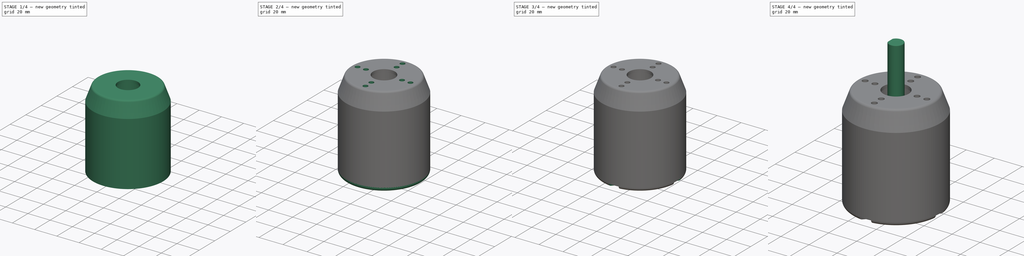
[diagram: build sequence overview — one tinted view per stage of 4, left to right]
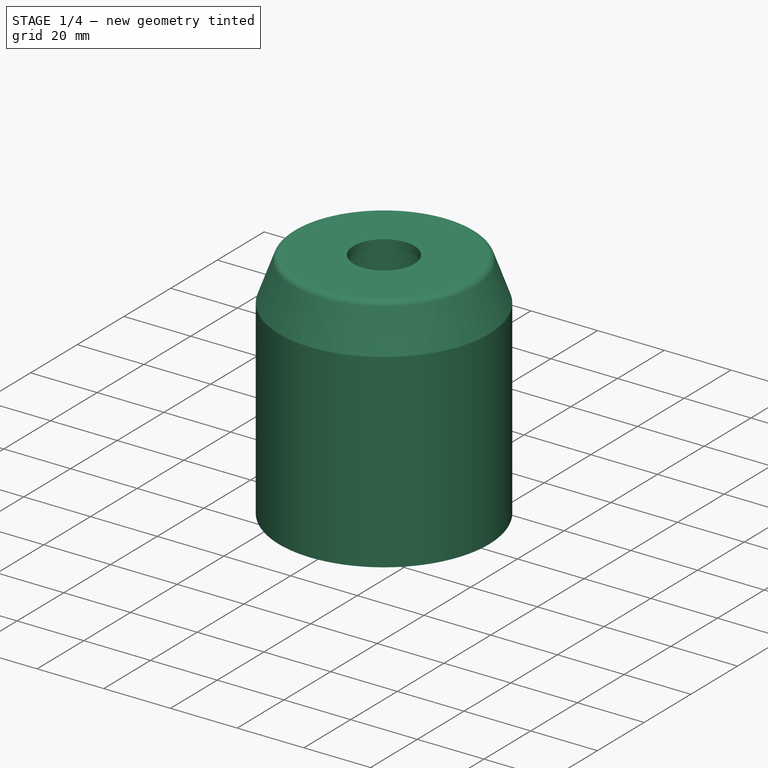
[diagram: stage 1 of 4 — iso view after this stage's code; geometry added in this stage tinted green]
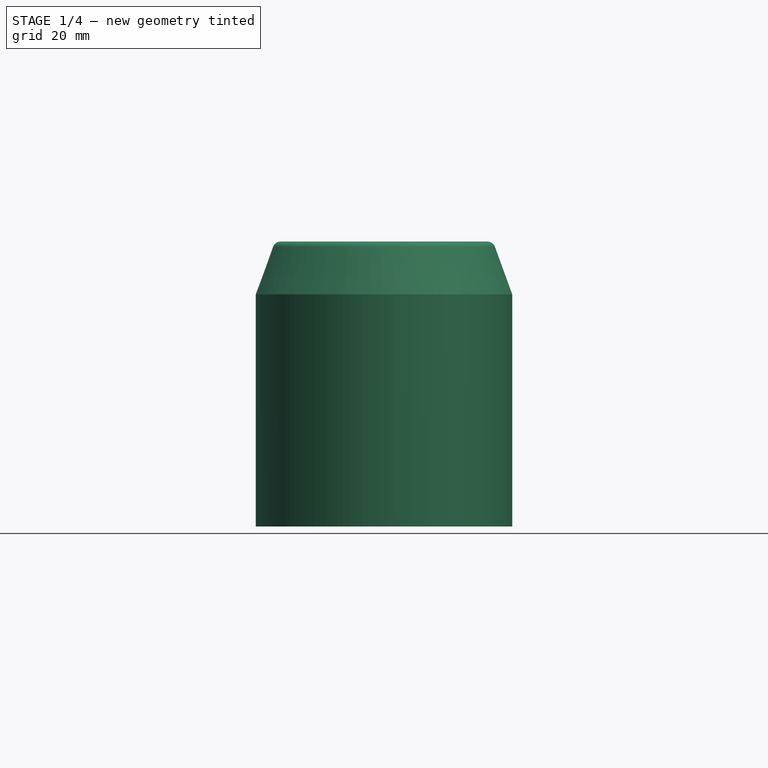
[diagram: stage 1 of 4 — front view after this stage's code; geometry added in this stage tinted green]
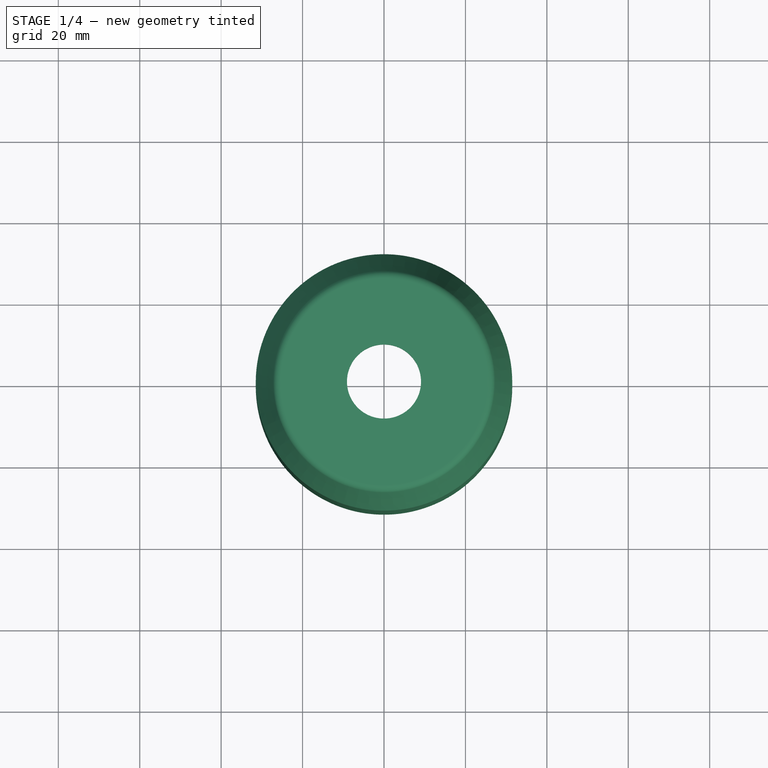
[diagram: stage 1 of 4 — top view after this stage's code; geometry added in this stage tinted green]
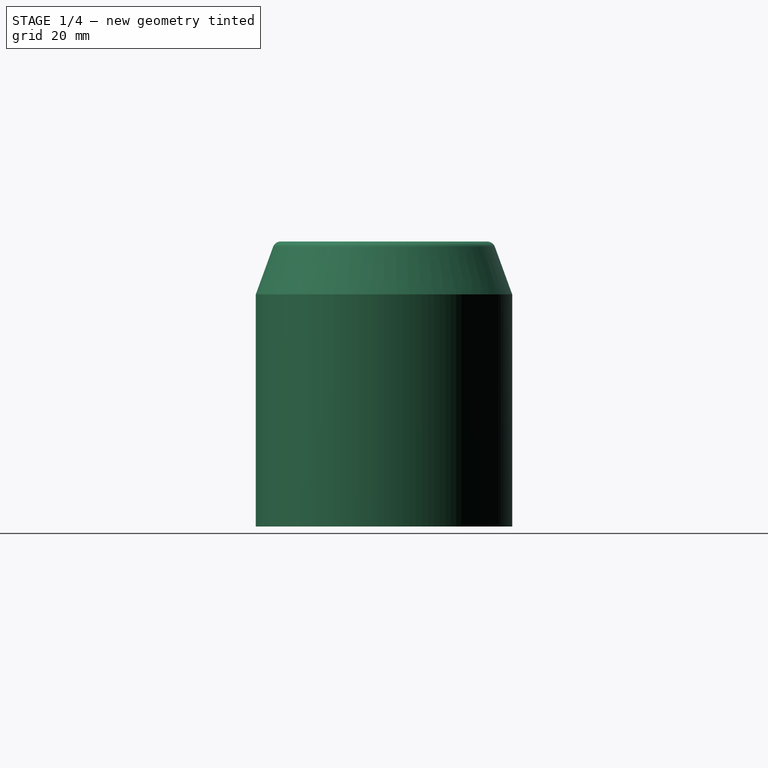
[diagram: stage 1 of 4 — right view after this stage's code; geometry added in this stage tinted green]
FCSTD DOCUMENT  (FreeCAD 0.22R37898 (Git))
Label: 9384 DC motor
License: All rights reserved
LicenseURL: http://en.wikipedia.org/wiki/All_rights_reserved
objects: Sketcher::SketchObject×8, PartDesign::Pocket×4, PartDesign::Revolution×3, PartDesign::Body×2, App::FeaturePython×1, PartDesign::Pad×1, PartDesign::PolarPattern×1
note: 27 computed .brp shape members not serialized (recipe doc carries the construction recipe); baked Part::Feature solids carry a one-line shape summary decoded from their .brp

FEATURE [Sketcher::SketchObject] Sketch005  label="Top sketch"
  AttachmentSupport = -> [XZ_Plane]
  FullyConstrained = true
  MapMode = 5
  Placement = pos=(0,0,0) rot=(1,0,0;1.5708rad)
  expr: Constraints[17] = dd.BearingDiameter / 2 + 0.1 mm
  expr: Constraints[8] = dd.Diameter / 2
  sketch-geometry (8):
    g0: LineSegment StartX=9.1 StartY=0 StartZ=0 EndX=25.368 EndY=0 EndZ=0
    g1: ArcOfCircle CenterX=25.368 CenterY=-2 CenterZ=0 NormalX=0 NormalY=0 NormalZ=1 AngleXU=0 Radius=2 StartAngle=0.349066 EndAngle=1.5708
    g2: LineSegment StartX=27.2474 StartY=-1.31596 StartZ=0 EndX=31.5 EndY=-13 EndZ=0
    g3: LineSegment StartX=31.5 StartY=-13 StartZ=0 EndX=31.5 EndY=-15 EndZ=0
    g4: LineSegment StartX=31.5 StartY=-15 StartZ=0 EndX=11.1 EndY=-15 EndZ=0
    g5: LineSegment StartX=9.1 StartY=0 StartZ=0 EndX=9.1 EndY=-2.5 EndZ=0
    g6: LineSegment StartX=9.1 StartY=-2.5 StartZ=0 EndX=11.1 EndY=-2.5 EndZ=0
    g7: LineSegment StartX=11.1 StartY=-2.5 StartZ=0 EndX=11.1 EndY=-15 EndZ=0
  constraints (23):
    c: Horizontal(g0)
    c: Tangent(g0,g1) = 1.5708
    c: Coincident(g2,g3)
    c: Coincident(g3,g4)
    c: Horizontal(g4)
    c: Radius(g1) = 2
    c: Tangent(g1,g2) = 1.5708
    c: Vertical(g3)
    c: DistanceX(g-1,g3) = 31.5
    c: Angle(g2,g3) = 2.79253
    c: Coincident(g5,g0)
    c: Vertical(g5)
    c: Coincident(g6,g5)
    c: Horizontal(g6)
    c: Coincident(g7,g6)
    c: Coincident(g7,g4)
    c: Vertical(g7)
    c: DistanceX(g-1,g6) = 11.1
    c: DistanceX(g6,g6) = 2
    c: DistanceY(g3,g3) = 2
    c: DistanceY(g4,g0) = 15  'height'
    c: DistanceY(g5,g5) = 2.5
    c: PointOnObject(g0,g-1)
FEATURE [App::FeaturePython] dd  # WARN: FeaturePython — macro-defined, semantics opaque (R4)
  AxisDiameter = 10
  AxisStickout = 31
  BackplateDiameter = 28
  BearingDiameter = 22
  DShaftLength = 28
  DShaftThickness = 9
  Diameter = 63
  DynamicData = Created with DynamicData (v2.62) workbench. | This is a simple container object built | for holding custom properties.
  Length = 80
  MountingHole1Diameter = 4
  MountingHole1Placement = 30
  MountingHole2Diameter = 4
  MountingHole2Placement = 44
FEATURE [Sketcher::SketchObject] Sketch
  AttachmentOffset = pos=(0,0,-15) rot=(0,0,1;0rad)
  AttachmentSupport = -> [XY_Plane]
  FullyConstrained = true
  MapMode = 5
  Placement = pos=(0,0,-15) rot=(0,0,1;0rad)
  expr: .AttachmentOffset.Base.z = -<<Top sketch>>.Constraints.height
  expr: Constraints[1] = dd.Diameter
  expr: Constraints[3] = dd.Diameter - 3 mm
  sketch-geometry (2):
    g0: Circle CenterX=0 CenterY=0 CenterZ=0 NormalX=0 NormalY=0 NormalZ=1 AngleXU=0 Radius=31.5
    g1: Circle CenterX=0 CenterY=0 CenterZ=0 NormalX=0 NormalY=0 NormalZ=1 AngleXU=0 Radius=30
  constraints (4):
    c: Coincident(g0,g-1)
    c: Diameter(g0) = 63
    c: Coincident(g1,g0)
    c: Diameter(g1) = 60
FEATURE [PartDesign::Revolution] Revolution  label="Top"
  Angle = 360
  Angle2 = 60
  Axis = (0,2e-16,1)
  Base = (0,0,0)
  Placement = pos=(0,0,0) rot=(1,0,0;1.5708rad)
  Profile = -> Sketch005
  ReferenceAxis = -> Sketch005 [V_Axis]
  Reversed = true
  Suppressed = false
  Type = 0
FEATURE [PartDesign::Pad] Pad  label="Middle"
  BaseFeature = -> Revolution
  Direction = (0,0,1)
  Length = 55
  Length2 = 10
  Placement = pos=(0,0,0) rot=(1,0,0;1.5708rad)
  Profile = -> Sketch
  ReferenceAxis = -> Sketch [N_Axis]
  Reversed = true
  Suppressed = false
  Type = 0
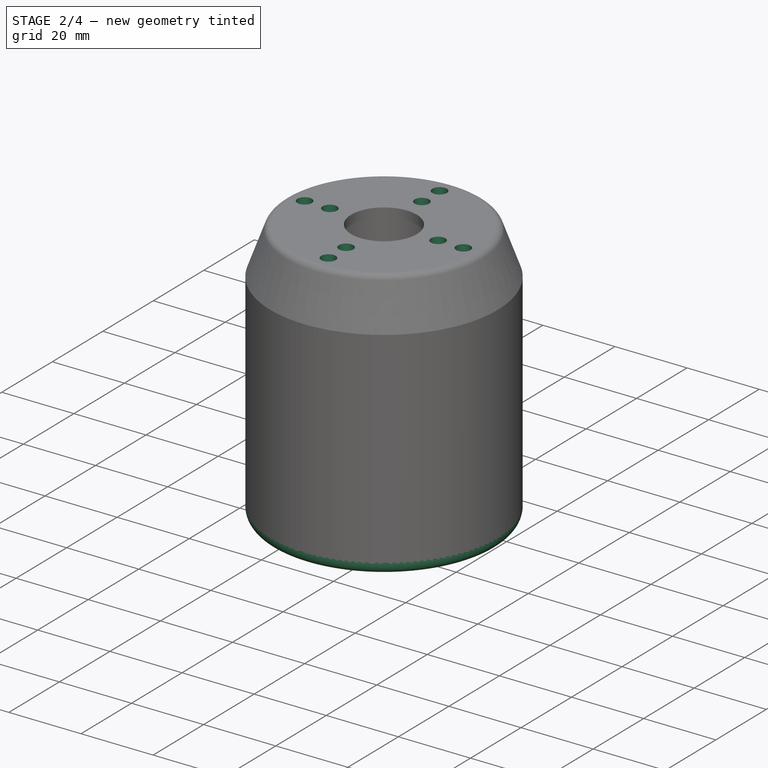
[diagram: stage 2 of 4 — iso view after this stage's code; geometry added in this stage tinted green]
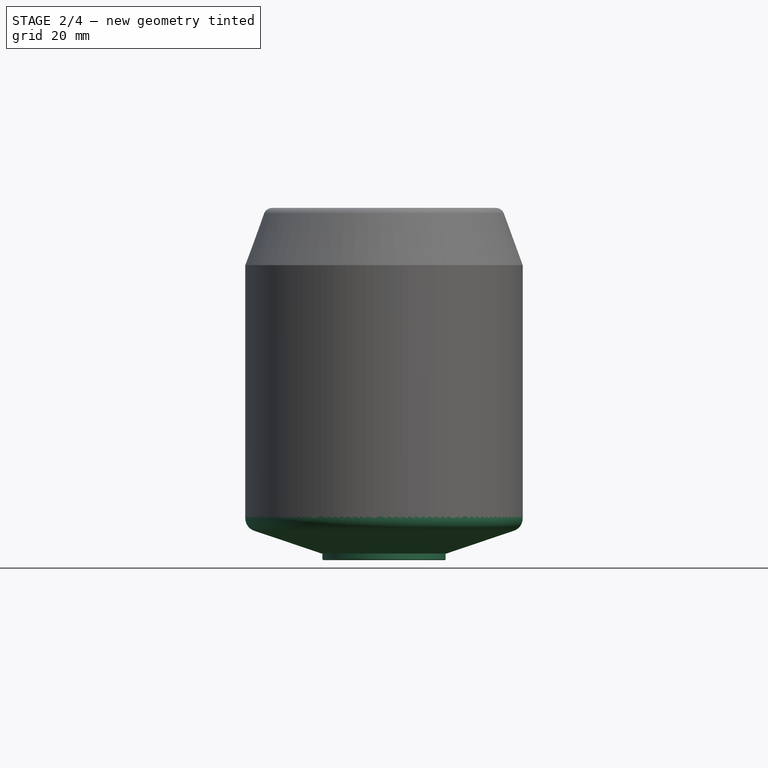
[diagram: stage 2 of 4 — front view after this stage's code; geometry added in this stage tinted green]
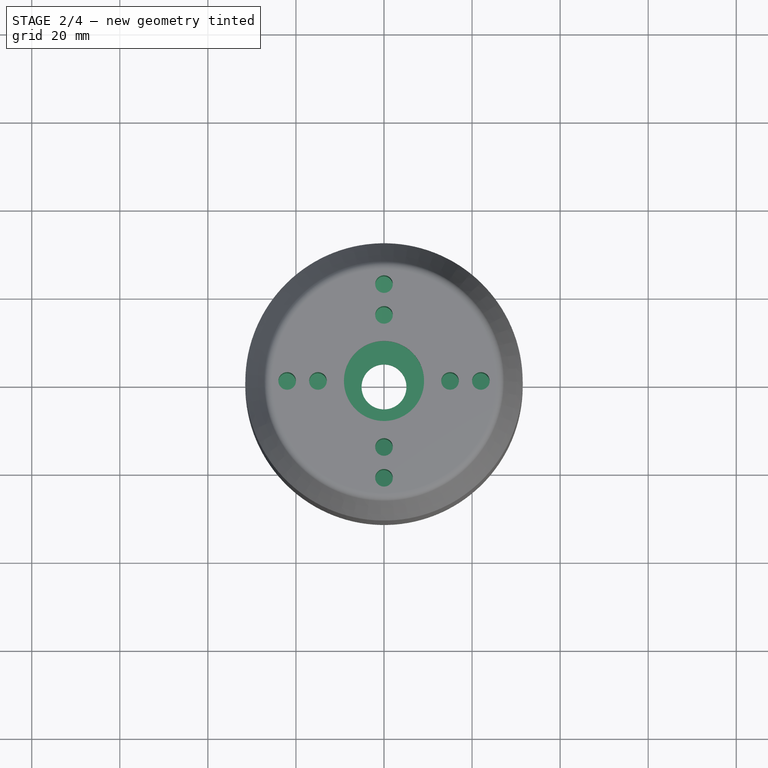
[diagram: stage 2 of 4 — top view after this stage's code; geometry added in this stage tinted green]
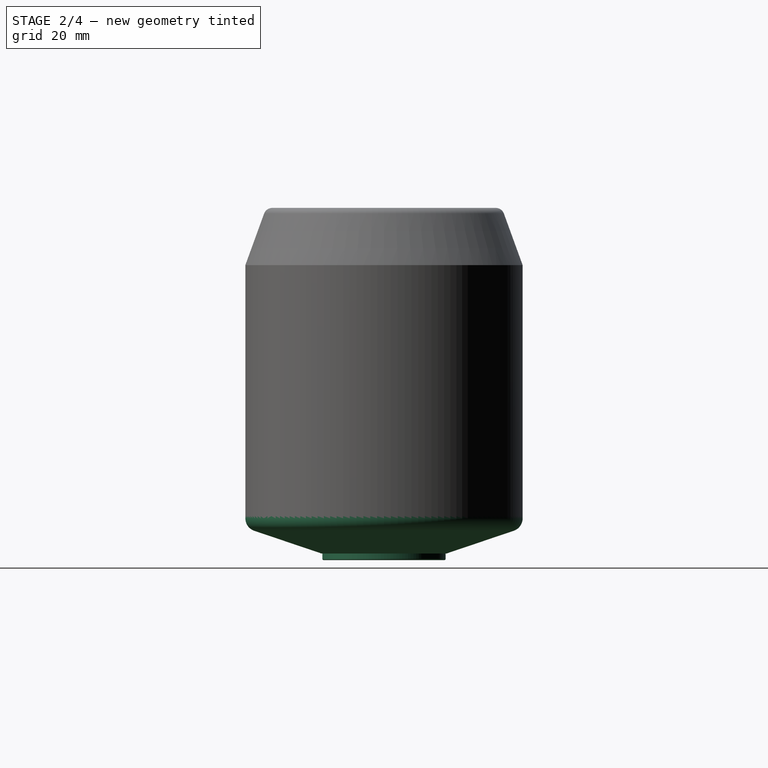
[diagram: stage 2 of 4 — right view after this stage's code; geometry added in this stage tinted green]
FEATURE [Sketcher::SketchObject] Sketch006  label="Back scketch"
  AttachmentSupport = -> [XZ_Plane]
  FullyConstrained = true
  MapMode = 5
  Placement = pos=(0,0,0) rot=(1,0,0;1.5708rad)
  expr: .Constraints.top = <<Top sketch>>.Constraints.height + <<Middle>>.Length
  expr: Constraints[10] = dd.Diameter / 2
  expr: Constraints[17] = dd.Length
  expr: Constraints[8] = dd.AxisDiameter / 2 + 0.1 mm
  expr: Constraints[9] = dd.BackplateDiameter / 2
  sketch-geometry (14):
    g0: LineSegment StartX=5.1 StartY=-80 StartZ=0 EndX=13.7 EndY=-80 EndZ=0
    g1: LineSegment StartX=14 StartY=-79.7 StartZ=0 EndX=14 EndY=-78.5 EndZ=0
    g2: LineSegment StartX=14 StartY=-78.5 StartZ=0 EndX=14.2 EndY=-78.5 EndZ=0
    g3: LineSegment StartX=14.2 StartY=-78.5 StartZ=0 EndX=29.4606 EndY=-73.3421 EndZ=0
    g4: ArcOfCircle CenterX=28.5 CenterY=-70.5 CenterZ=0 NormalX=0 NormalY=0 NormalZ=1 AngleXU=0 Radius=3 StartAngle=5.03833 EndAngle=6.28319
    g5: LineSegment StartX=31.5 StartY=-70.5 StartZ=0 EndX=31.5 EndY=-70 EndZ=0
    g6: LineSegment StartX=5.1 StartY=-78 StartZ=0 EndX=5.1 EndY=-80 EndZ=0
    g7: ArcOfCircle CenterX=13.7 CenterY=-79.7 CenterZ=0 NormalX=0 NormalY=0 NormalZ=1 AngleXU=0 Radius=0.3 StartAngle=4.71239 EndAngle=6.28319
    g8: GeomPoint X=14 Y=-80 Z=0
    g9: LineSegment StartX=5.1 StartY=-78 StartZ=0 EndX=10.9947 EndY=-78 EndZ=0
    g10: LineSegment StartX=10.9947 StartY=-78 StartZ=0 EndX=28.9803 EndY=-71.921 EndZ=0
    g11: LineSegment StartX=31.5 StartY=-70 StartZ=0 EndX=30 EndY=-70 EndZ=0
    g12: LineSegment StartX=30 StartY=-70 StartZ=0 EndX=30 EndY=-70.5 EndZ=0
    g13: ArcOfCircle CenterX=28.5 CenterY=-70.5 CenterZ=0 NormalX=0 NormalY=0 NormalZ=1 AngleXU=0 Radius=1.5 StartAngle=5.03833 EndAngle=6.28319
  constraints (37):
    c: Horizontal(g0)
    c: Vertical(g1)
    c: Coincident(g1,g2)
    c: Coincident(g2,g3)
    c: Tangent(g3,g4) = -1.5708
    c: Vertical(g5)
    c: Coincident(g6,g0)
    c: Vertical(g6)
    c: DistanceX(g-1,g6) = 5.1
    c: DistanceX(g-1,g8) = 14
    c: DistanceX(g-1,g5) = 31.5
    c: Tangent(g4,g5) = -1.5708
    c: Horizontal(g2)
    c: Radius(g4) = 3
    c: DistanceY(g5,g5) = 0.5
    c: DistanceY(g8,g1) = 1.5
    c: DistanceX(g2,g2) = 0.2
    c: DistanceY(g0,g-1) = 80
    c: PointOnObject(g8,g0)
    c: PointOnObject(g8,g1)
    c: Tangent(g0,g7) = -1.5708
    c: Tangent(g1,g7) = -1.5708
    c: Radius(g7) = 0.3
    c: DistanceY(g5,g-1) = 70  'top'
    c: Coincident(g9,g6)
    c: Horizontal(g9)
    c: Coincident(g10,g9)
    c: Coincident(g11,g5)
    c: Coincident(g12,g11)
    c: Vertical(g12)
    c: Coincident(g13,g4)
    c: Horizontal(g11)
    c: DistanceX(g11,g11) = 1.5
    c: Tangent(g13,g12) = 1.5708
    c: Tangent(g13,g10) = -1.5708
    c: Parallel(g10,g3)
    c: DistanceY(g6,g6) = 2
FEATURE [PartDesign::Revolution] Revolution002  label="Back"
  Angle = 360
  Angle2 = 60
  Axis = (0,2e-16,1)
  Base = (0,0,0)
  BaseFeature = -> Pad
  Placement = pos=(0,0,0) rot=(1,0,0;1.5708rad)
  Profile = -> Sketch006
  ReferenceAxis = -> Sketch006 [V_Axis]
  Reversed = true
  Suppressed = false
  Type = 0
FEATURE [PartDesign::Body] Body001  label="Axis"
  AllowCompound = false
  Group = -> [Sketch007,Revolution003,Sketch008,Pocket]
  Origin = -> Origin001
  Tip = -> Pocket
FEATURE [Sketcher::SketchObject] Sketch009  label="Top mounting holes sketch"
  AttachmentSupport = -> [XY_Plane]
  FullyConstrained = true
  MapMode = 5
  expr: Constraints[15] = dd.MountingHole2Diameter
  expr: Constraints[19] = dd.MountingHole1Diameter
  expr: Constraints[2] = dd.MountingHole1Placement
  expr: Constraints[3] = dd.MountingHole2Placement
  sketch-geometry (10):
    g0: Circle CenterX=0 CenterY=0 CenterZ=0 NormalX=0 NormalY=0 NormalZ=1 AngleXU=0 Radius=15
    g1: Circle CenterX=0 CenterY=0 CenterZ=0 NormalX=0 NormalY=0 NormalZ=1 AngleXU=0 Radius=22
    g2: Circle CenterX=22 CenterY=0 CenterZ=0 NormalX=0 NormalY=0 NormalZ=1 AngleXU=0 Radius=2
    g3: Circle CenterX=0 CenterY=-22 CenterZ=0 NormalX=0 NormalY=0 NormalZ=1 AngleXU=0 Radius=2
    g4: Circle CenterX=-22 CenterY=0 CenterZ=0 NormalX=0 NormalY=0 NormalZ=1 AngleXU=0 Radius=2
    g5: Circle CenterX=-15 CenterY=0 CenterZ=0 NormalX=0 NormalY=0 NormalZ=1 AngleXU=0 Radius=2
    g6: Circle CenterX=0 CenterY=15 CenterZ=0 NormalX=0 NormalY=0 NormalZ=1 AngleXU=0 Radius=2
    g7: Circle CenterX=0 CenterY=22 CenterZ=0 NormalX=0 NormalY=0 NormalZ=1 AngleXU=0 Radius=2
    g8: Circle CenterX=0 CenterY=-15 CenterZ=0 NormalX=0 NormalY=0 NormalZ=1 AngleXU=0 Radius=2
    g9: Circle CenterX=15 CenterY=0 CenterZ=0 NormalX=0 NormalY=0 NormalZ=1 AngleXU=0 Radius=2
  constraints (28):
    c: Coincident(g0,g-1)
    c: Coincident(g1,g0)
    c: Diameter(g0) = 30
    c: Diameter(g1) = 44
    c: PointOnObject(g2,g1)
    c: PointOnObject(g3,g1)
    c: PointOnObject(g4,g1)
    c: PointOnObject(g5,g0)
    c: PointOnObject(g6,g0)
    c: PointOnObject(g7,g1)
    c: PointOnObject(g8,g0)
    c: PointOnObject(g9,g0)
    c: Equal(g2,g3)
    c: Equal(g3,g4)
    c: Equal(g4,g7)
    c: Diameter(g2) = 4
    c: Equal(g8,g9)
    c: Equal(g9,g5)
    c: Equal(g5,g6)
    c: Diameter(g6) = 4
    c: PointOnObject(g2,g-1)
    c: PointOnObject(g9,g-1)
    c: PointOnObject(g6,g-2)
    c: PointOnObject(g7,g-2)
    c: PointOnObject(g5,g-1)
    c: PointOnObject(g4,g-1)
    c: PointOnObject(g8,g-2)
    c: PointOnObject(g3,g-2)
FEATURE [PartDesign::Pocket] Pocket001  label="Top mounting holes"
  BaseFeature = -> Revolution002
  Direction = (0,0,-1)
  Length = 20
  Length2 = 5
  Placement = pos=(0,0,0) rot=(1,0,0;1.5708rad)
  Profile = -> Sketch009
  ReferenceAxis = -> Sketch009 [N_Axis]
  Suppressed = false
  Type = 0
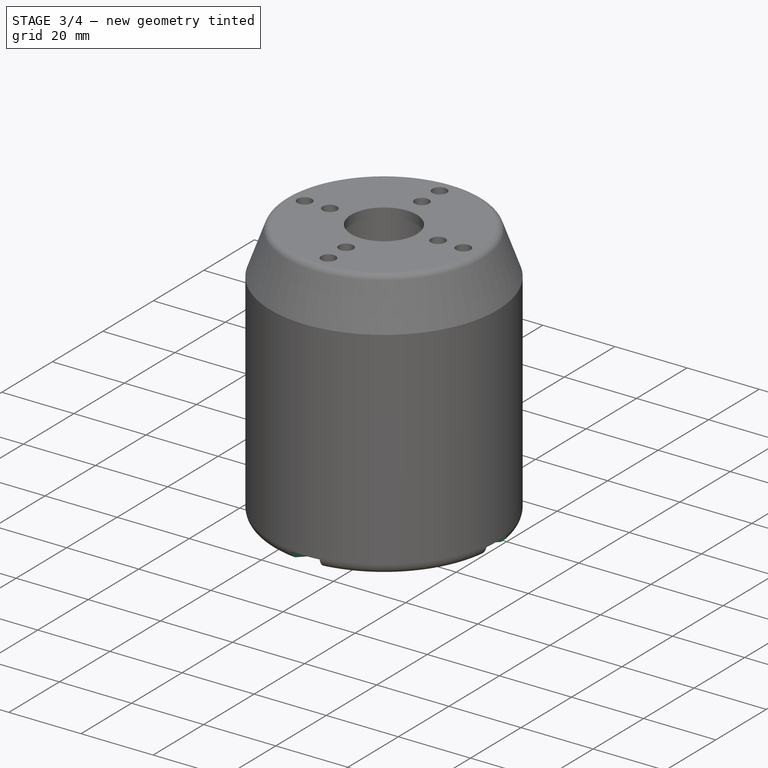
[diagram: stage 3 of 4 — iso view after this stage's code; geometry added in this stage tinted green]
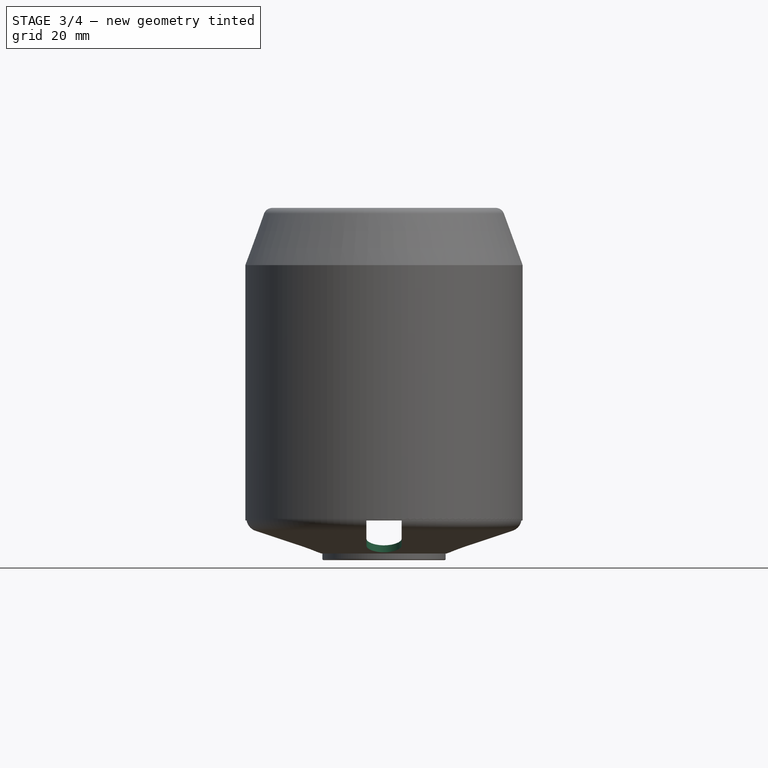
[diagram: stage 3 of 4 — front view after this stage's code; geometry added in this stage tinted green]
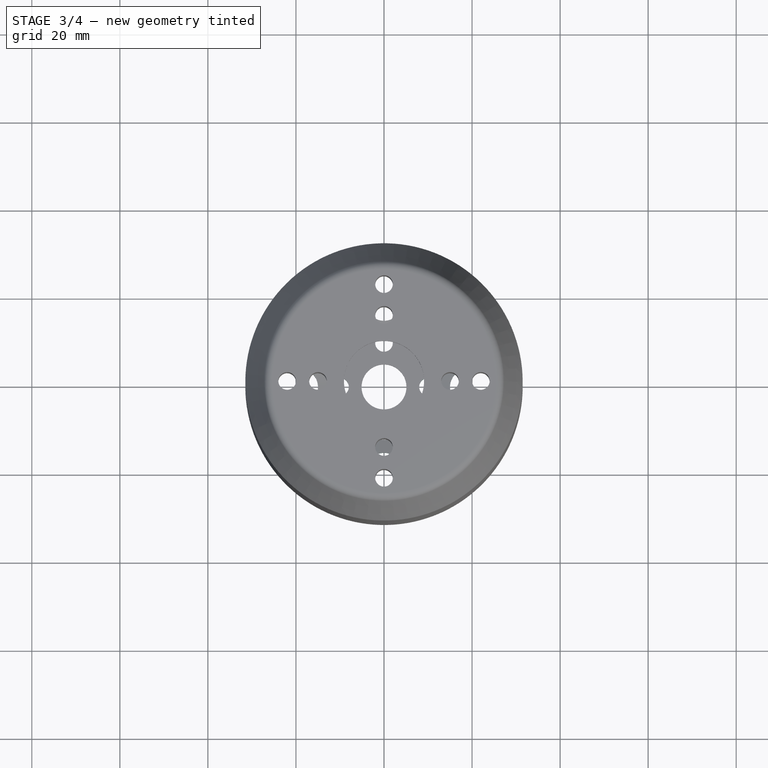
[diagram: stage 3 of 4 — top view after this stage's code; geometry added in this stage tinted green]
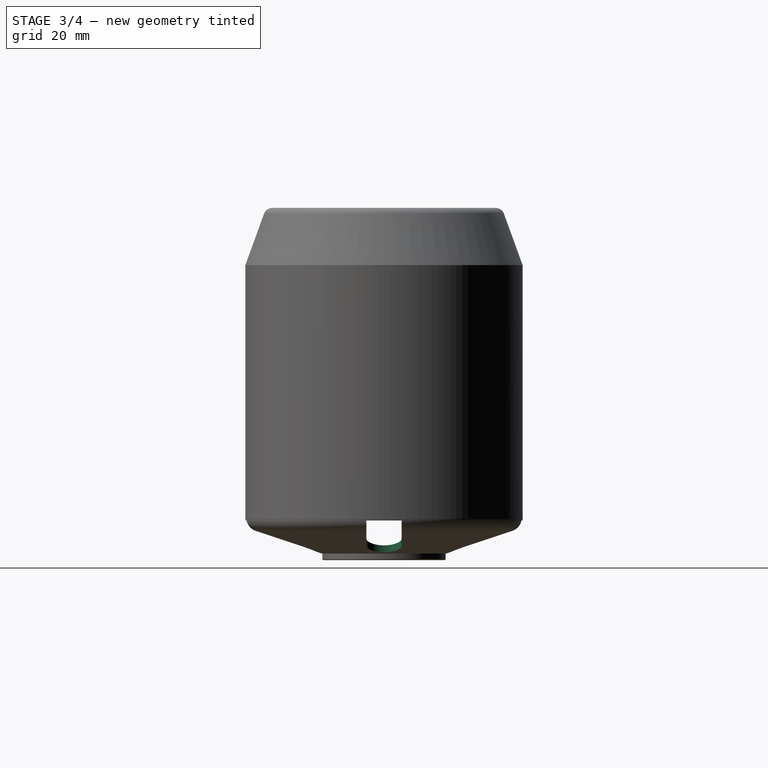
[diagram: stage 3 of 4 — right view after this stage's code; geometry added in this stage tinted green]
FEATURE [Sketcher::SketchObject] Sketch010  label="Back mounting holes sketch"
  AttachmentOffset = pos=(0,0,-80) rot=(0,0,1;0rad)
  AttachmentSupport = -> [XY_Plane]
  FullyConstrained = true
  MapMode = 5
  Placement = pos=(0,0,-80) rot=(0,0,1;0rad)
  expr: .AttachmentOffset.Base.z = -dd.Length
  sketch-geometry (5):
    g0: Circle CenterX=0 CenterY=0 CenterZ=0 NormalX=0 NormalY=0 NormalZ=1 AngleXU=0 Radius=10
    g1: Circle CenterX=10 CenterY=0 CenterZ=0 NormalX=0 NormalY=0 NormalZ=1 AngleXU=0 Radius=2
    g2: Circle CenterX=0 CenterY=-10 CenterZ=0 NormalX=0 NormalY=0 NormalZ=1 AngleXU=0 Radius=2
    g3: Circle CenterX=-10 CenterY=0 CenterZ=0 NormalX=0 NormalY=0 NormalZ=1 AngleXU=0 Radius=2
    g4: Circle CenterX=0 CenterY=10 CenterZ=0 NormalX=0 NormalY=0 NormalZ=1 AngleXU=0 Radius=2
  constraints (14):
    c: Coincident(g0,g-1)
    c: Diameter(g0) = 20
    c: PointOnObject(g1,g-1)
    c: PointOnObject(g2,g-2)
    c: PointOnObject(g3,g-1)
    c: PointOnObject(g4,g-2)
    c: PointOnObject(g4,g0)
    c: PointOnObject(g1,g0)
    c: PointOnObject(g2,g0)
    c: PointOnObject(g3,g0)
    c: Equal(g3,g2)
    c: Equal(g2,g1)
    c: Equal(g1,g4)
    c: Diameter(g4) = 4
FEATURE [PartDesign::Pocket] Pocket002  label="Back mounting holes"
  BaseFeature = -> Pocket001
  Direction = (0,0,-1)
  Length = 25
  Length2 = 5
  Placement = pos=(0,0,0) rot=(1,0,0;1.5708rad)
  Profile = -> Sketch010
  ReferenceAxis = -> Sketch010 [N_Axis]
  Reversed = true
  Suppressed = false
  Type = 0
FEATURE [Sketcher::SketchObject] Sketch011  label="Back air hole sketch"
  AttachmentOffset = pos=(0,0,-71) rot=(0,0,1;0rad)
  AttachmentSupport = -> [XY_Plane]
  FullyConstrained = true
  MapMode = 5
  Placement = pos=(0,0,-71) rot=(0,0,1;0rad)
  expr: .AttachmentOffset.Base.z = -<<Back scketch>>.Constraints.top - 1 mm
  expr: Constraints[10] = dd.Diameter / 2
  expr: Constraints[8] = dd.BackplateDiameter / 2 + 1 mm + .Constraints.slot_width / 2
  sketch-geometry (4):
    g0: ArcOfCircle CenterX=19 CenterY=0 CenterZ=0 NormalX=0 NormalY=0 NormalZ=1 AngleXU=0 Radius=4 StartAngle=1.5708 EndAngle=4.71239
    g1: LineSegment StartX=19 StartY=-4 StartZ=0 EndX=31.5 EndY=-4 EndZ=0
    g2: LineSegment StartX=31.5 StartY=-4 StartZ=0 EndX=31.5 EndY=4 EndZ=0
    g3: LineSegment StartX=31.5 StartY=4 StartZ=0 EndX=19 EndY=4 EndZ=0
  constraints (11):
    c: PointOnObject(g0,g-1)
    c: Horizontal(g1)
    c: Coincident(g2,g1)
    c: Coincident(g3,g2)
    c: Coincident(g3,g0)
    c: Horizontal(g3)
    c: Symmetric(g1,g2,g-1)
    c: DistanceY(g2,g2) = 8  'slot_width'
    c: DistanceX(g-1,g0) = 19
    c: Tangent(g1,g0) = -1.5708
    c: DistanceX(g-1,g1) = 31.5
FEATURE [PartDesign::Pocket] Pocket003  label="Back air holes"
  BaseFeature = -> Pocket002
  Direction = (0,0,-1)
  Length = 5
  Length2 = 5
  Placement = pos=(0,0,0) rot=(1,0,0;1.5708rad)
  Profile = -> Sketch011
  ReferenceAxis = -> Sketch011 [N_Axis]
  Suppressed = false
  Type = 1
FEATURE [PartDesign::PolarPattern] PolarPattern
  Angle = 360
  Axis = -> Sketch011 [N_Axis]
  BaseFeature = -> Pocket003
  Mode = 0
  Occurrences = 4
  Offset = 120
  Originals = -> [Pocket003]
  Placement = pos=(0,0,0) rot=(1,0,0;1.5708rad)
  Suppressed = false
  TransformMode = 0
FEATURE [PartDesign::Body] Body
  AllowCompound = false
  Group = -> [Sketch005,Sketch,Revolution,Pad,Sketch006,Revolution002,Sketch009,Pocket001,Sketch010,Pocket002,Sketch011,Pocket003,PolarPattern]
  Origin = -> Origin
  Tip = -> PolarPattern
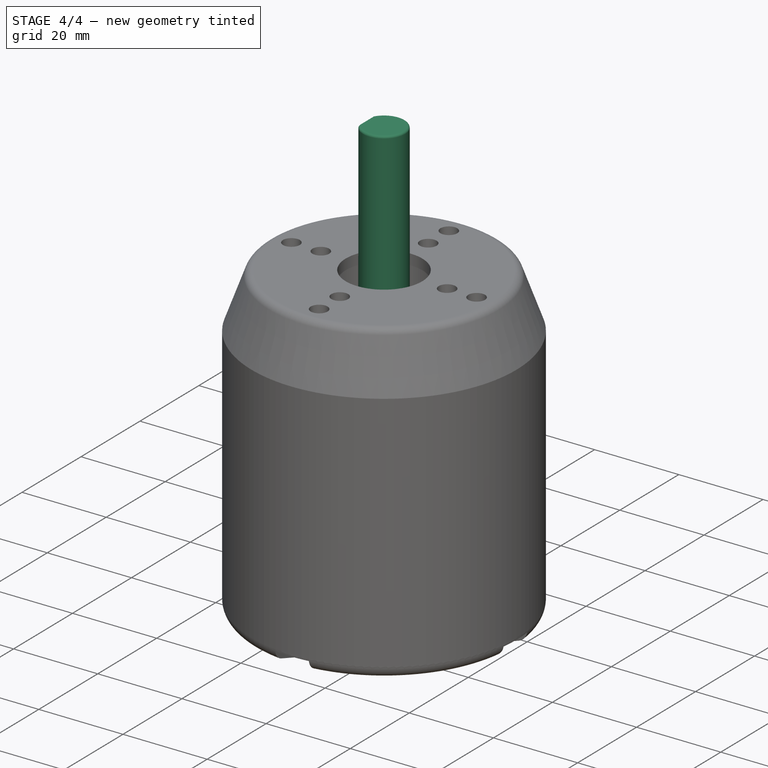
[diagram: stage 4 of 4 — iso view after this stage's code; geometry added in this stage tinted green]
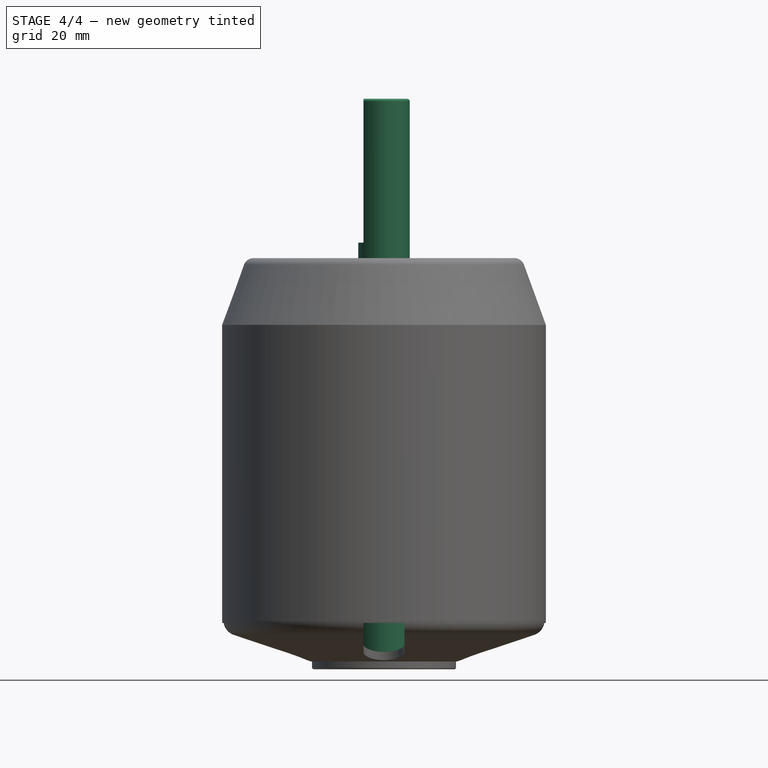
[diagram: stage 4 of 4 — front view after this stage's code; geometry added in this stage tinted green]
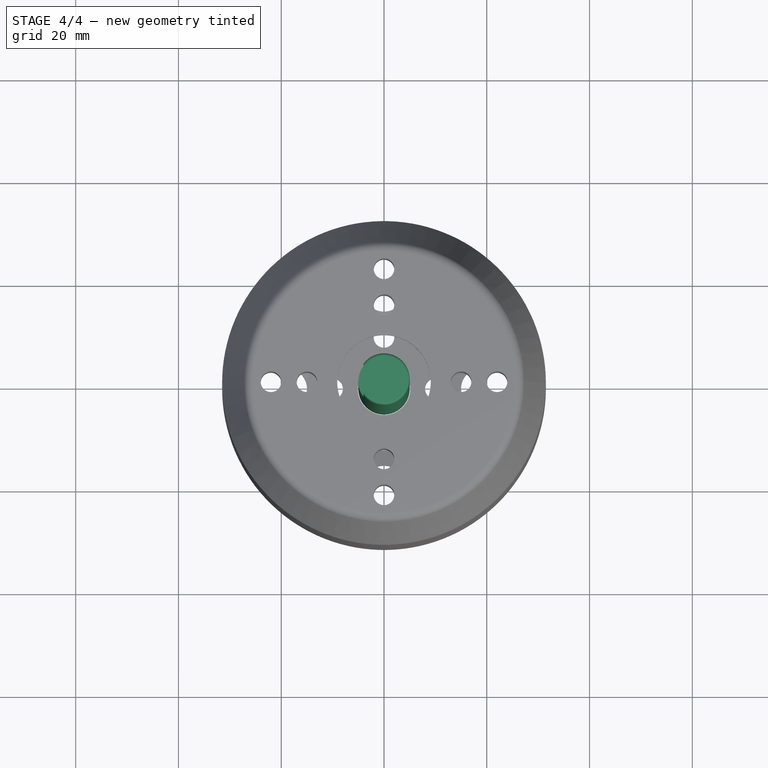
[diagram: stage 4 of 4 — top view after this stage's code; geometry added in this stage tinted green]
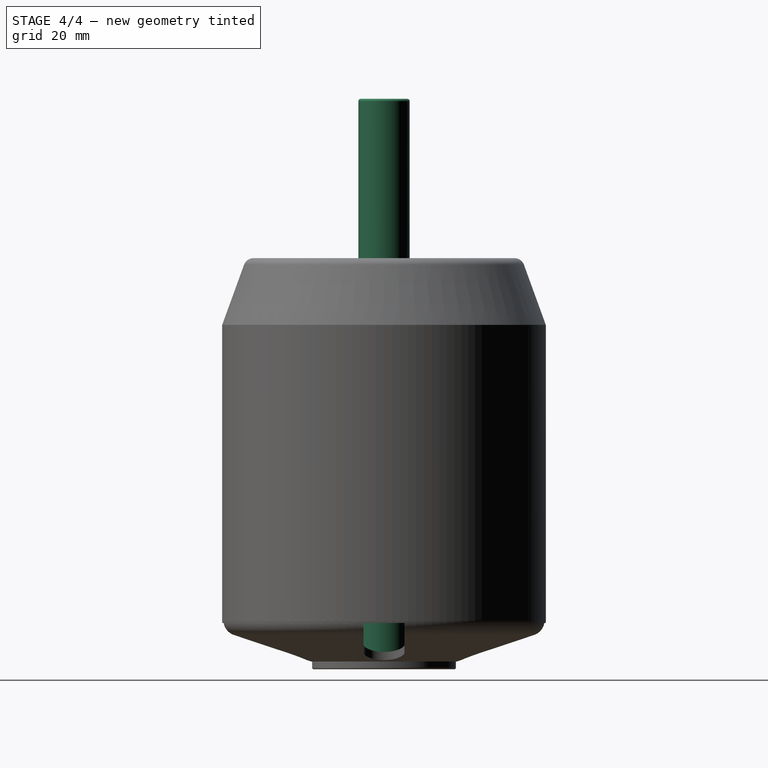
[diagram: stage 4 of 4 — right view after this stage's code; geometry added in this stage tinted green]
FEATURE [Sketcher::SketchObject] Sketch007
  AttachmentSupport = -> [XZ_Plane001]
  FullyConstrained = true
  MapMode = 5
  Placement = pos=(0,0,0) rot=(1,0,0;1.5708rad)
  expr: Constraints[12] = dd.AxisDiameter / 2
  expr: Constraints[14] = dd.AxisStickout + dd.Length
  expr: Constraints[15] = dd.AxisStickout
  sketch-geometry (6):
    g0: LineSegment StartX=0 StartY=-80 StartZ=0 EndX=0 EndY=31 EndZ=0
    g1: LineSegment StartX=0 StartY=31 StartZ=0 EndX=4.5 EndY=31 EndZ=0
    g2: ArcOfCircle CenterX=4.5 CenterY=30.5 CenterZ=0 NormalX=0 NormalY=0 NormalZ=1 AngleXU=0 Radius=0.5 StartAngle=-1.8e-15 EndAngle=1.5708
    g3: LineSegment StartX=5 StartY=30.5 StartZ=0 EndX=5 EndY=-79.5 EndZ=0
    g4: ArcOfCircle CenterX=4.5 CenterY=-79.5 CenterZ=0 NormalX=0 NormalY=0 NormalZ=1 AngleXU=0 Radius=0.5 StartAngle=4.71239 EndAngle=6.28319
    g5: LineSegment StartX=4.5 StartY=-80 StartZ=0 EndX=0 EndY=-80 EndZ=0
  constraints (16):
    c: PointOnObject(g0,g-2)
    c: PointOnObject(g0,g-2)
    c: Coincident(g0,g1)
    c: Horizontal(g1)
    c: Tangent(g1,g2) = 1.5708
    c: Vertical(g3)
    c: Tangent(g3,g4) = 1.5708
    c: Coincident(g5,g0)
    c: Horizontal(g5)
    c: Equal(g4,g2)
    c: Tangent(g2,g3) = 1.5708
    c: Tangent(g4,g5) = 1.5708
    c: DistanceX(g0,g3) = 5
    c: Radius(g4) = 0.5
    c: DistanceY(g0,g0) = 111
    c: DistanceY(g-1,g0) = 31
FEATURE [PartDesign::Revolution] Revolution003
  Angle = 360
  Angle2 = 60
  Axis = (0,2e-16,1)
  Base = (0,0,0)
  Placement = pos=(0,0,0) rot=(1,0,0;1.5708rad)
  Profile = -> Sketch007
  ReferenceAxis = -> Sketch007 [V_Axis]
  Reversed = true
  Suppressed = false
  Type = 0
FEATURE [Sketcher::SketchObject] Sketch008
  AttachmentOffset = pos=(0,0,3) rot=(0,0,1;0rad)
  AttachmentSupport = -> [XY_Plane001]
  FullyConstrained = true
  MapMode = 5
  Placement = pos=(0,0,3) rot=(0,0,1;0rad)
  expr: .AttachmentOffset.Base.z = dd.AxisStickout - dd.DShaftLength
  expr: Constraints[0] = dd.DShaftThickness - dd.AxisDiameter / 2
  expr: Constraints[9] = dd.AxisDiameter
  sketch-geometry (4):
    g0: LineSegment StartX=-4 StartY=5 StartZ=0 EndX=-4 EndY=-5 EndZ=0
    g1: LineSegment StartX=-4 StartY=-5 StartZ=0 EndX=-14 EndY=-5 EndZ=0
    g2: LineSegment StartX=-14 StartY=-5 StartZ=0 EndX=-14 EndY=5 EndZ=0
    g3: LineSegment StartX=-14 StartY=5 StartZ=0 EndX=-4 EndY=5 EndZ=0
  constraints (11):
    c: DistanceX(g0,g-1) = 4
    c: Symmetric(g0,g0,g-1)
    c: Coincident(g1,g0)
    c: Horizontal(g1)
    c: Coincident(g2,g1)
    c: Vertical(g2)
    c: Coincident(g3,g2)
    c: Coincident(g3,g0)
    c: Horizontal(g3)
    c: DistanceY(g0,g0) = 10
    c: Equal(g0,g1)
FEATURE [PartDesign::Pocket] Pocket
  BaseFeature = -> Revolution003
  Direction = (0,0,-1)
  Length = 5
  Length2 = 5
  Placement = pos=(0,0,0) rot=(1,0,0;1.5708rad)
  Profile = -> Sketch008
  ReferenceAxis = -> Sketch008 [N_Axis]
  Reversed = true
  Suppressed = false
  Type = 1
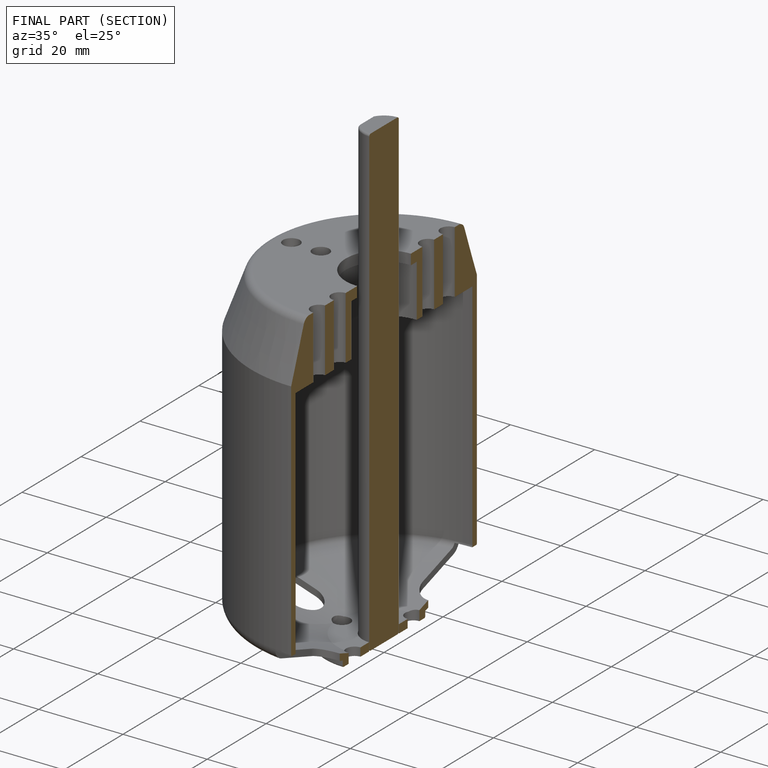
[diagram: finished part — half-section view (interior)]
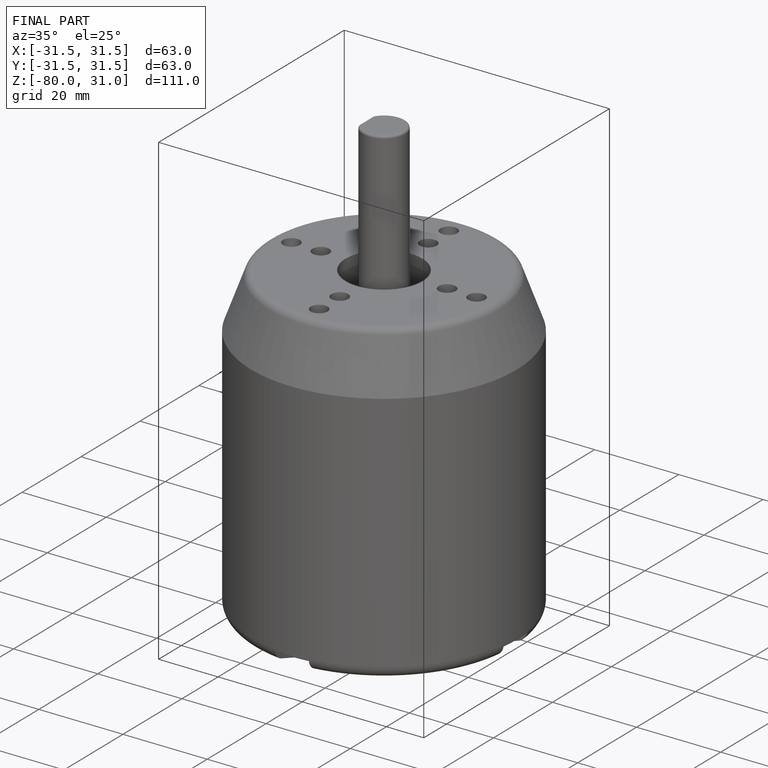
[diagram: finished part — iso view with bounding-box wireframe]
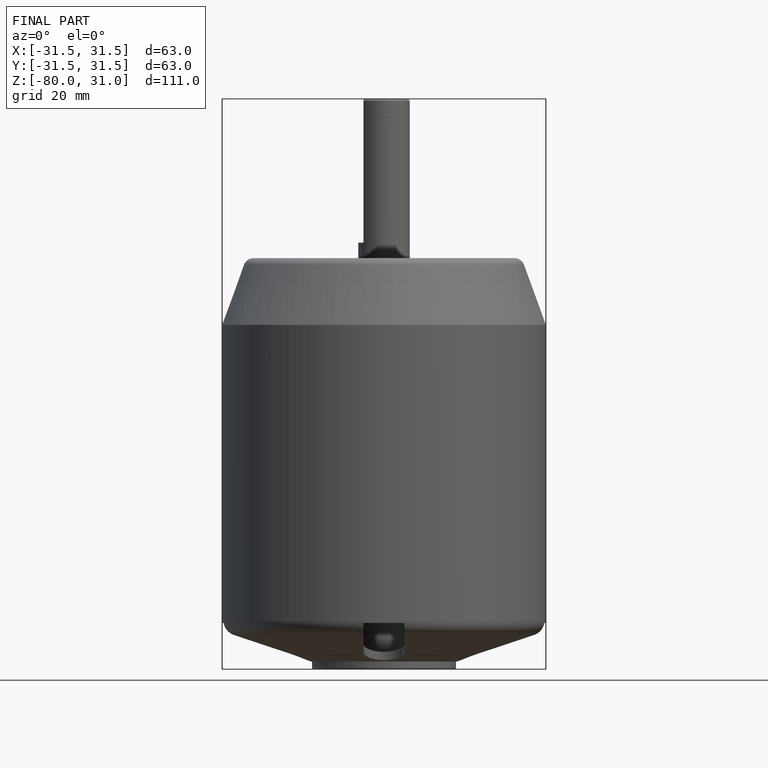
[diagram: finished part — front view with bounding-box wireframe]
